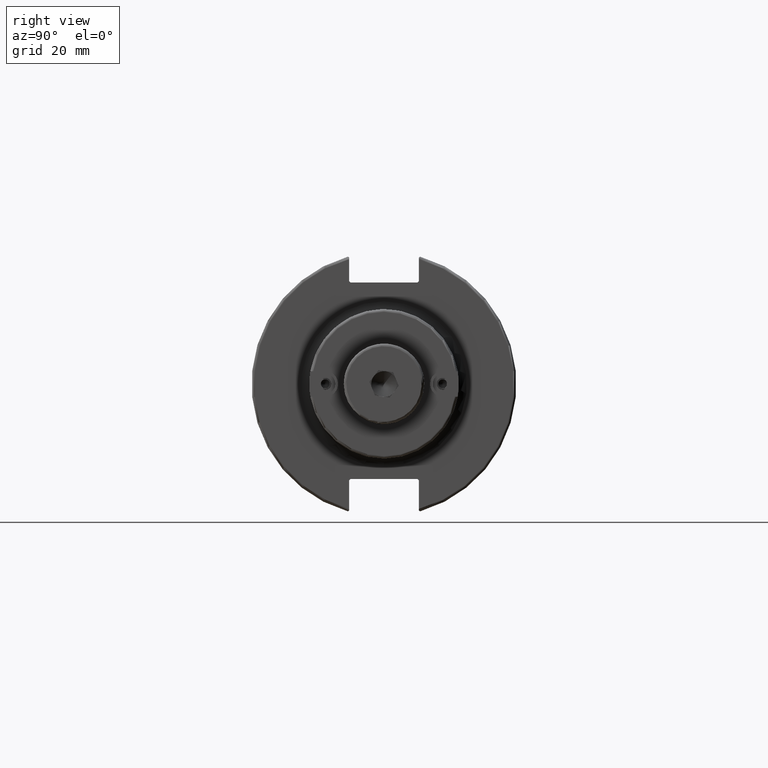
[diagram: clean part render]
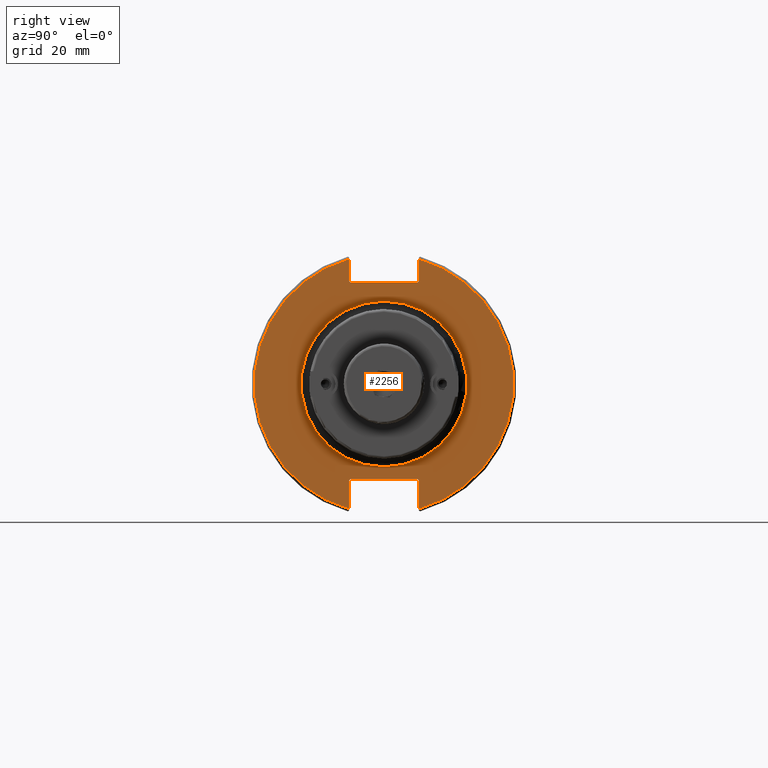
[diagram: same view with one face highlighted and labeled with its STEP entity id]
A machine part, right view. The second image highlights one B-rep face of the part: STEP entity #2256.
In plain terms, the highlighted planar face has unit normal (1, 0, 0).
Its self-contained STEP definition (entity closure, byte-faithful):
#73=FACE_BOUND('',#396,.T.);
#146=PLANE('',#2494);
#258=FACE_OUTER_BOUND('',#395,.T.);
#395=EDGE_LOOP('',(#1620,#1621,#1622,#1623,#1624,#1625,#1626,#1627,#1628,
#1629,#1630,#1631));
#396=EDGE_LOOP('',(#1632));
#560=LINE('',#3553,#716);
#561=LINE('',#3555,#717);
#562=LINE('',#3557,#718);
#563=LINE('',#3559,#719);
#564=LINE('',#3561,#720);
#565=LINE('',#3565,#721);
#566=LINE('',#3567,#722);
#567=LINE('',#3569,#723);
#568=LINE('',#3571,#724);
#569=LINE('',#3572,#725);
#716=VECTOR('',#2825,10.);
#717=VECTOR('',#2826,10.);
#718=VECTOR('',#2827,10.);
#719=VECTOR('',#2828,10.);
#720=VECTOR('',#2829,10.);
#721=VECTOR('',#2832,10.);
#722=VECTOR('',#2833,10.);
#723=VECTOR('',#2834,10.);
#724=VECTOR('',#2835,10.);
#725=VECTOR('',#2836,10.);
#869=CIRCLE('',#2493,30.79);
#870=CIRCLE('',#2495,48.2125);
#871=CIRCLE('',#2496,48.2125);
#1004=VERTEX_POINT('',#3545);
#1005=VERTEX_POINT('',#3549);
#1006=VERTEX_POINT('',#3550);
#1007=VERTEX_POINT('',#3552);
#1008=VERTEX_POINT('',#3554);
#1009=VERTEX_POINT('',#3556);
#1010=VERTEX_POINT('',#3558);
#1011=VERTEX_POINT('',#3560);
#1012=VERTEX_POINT('',#3562);
#1013=VERTEX_POINT('',#3564);
#1014=VERTEX_POINT('',#3566);
#1015=VERTEX_POINT('',#3568);
#1016=VERTEX_POINT('',#3570);
#1244=EDGE_CURVE('',#1004,#1004,#869,.T.);
#1245=EDGE_CURVE('',#1005,#1006,#870,.T.);
#1246=EDGE_CURVE('',#1005,#1007,#560,.T.);
#1247=EDGE_CURVE('',#1008,#1007,#561,.T.);
#1248=EDGE_CURVE('',#1008,#1009,#562,.T.);
#1249=EDGE_CURVE('',#1010,#1009,#563,.T.);
#1250=EDGE_CURVE('',#1010,#1011,#564,.T.);
#1251=EDGE_CURVE('',#1012,#1011,#871,.T.);
#1252=EDGE_CURVE('',#1012,#1013,#565,.T.);
#1253=EDGE_CURVE('',#1014,#1013,#566,.T.);
#1254=EDGE_CURVE('',#1014,#1015,#567,.T.);
#1255=EDGE_CURVE('',#1016,#1015,#568,.T.);
#1256=EDGE_CURVE('',#1016,#1006,#569,.T.);
#1620=ORIENTED_EDGE('',*,*,#1245,.F.);
#1621=ORIENTED_EDGE('',*,*,#1246,.T.);
#1622=ORIENTED_EDGE('',*,*,#1247,.F.);
#1623=ORIENTED_EDGE('',*,*,#1248,.T.);
#1624=ORIENTED_EDGE('',*,*,#1249,.F.);
#1625=ORIENTED_EDGE('',*,*,#1250,.T.);
#1626=ORIENTED_EDGE('',*,*,#1251,.F.);
#1627=ORIENTED_EDGE('',*,*,#1252,.T.);
#1628=ORIENTED_EDGE('',*,*,#1253,.F.);
#1629=ORIENTED_EDGE('',*,*,#1254,.T.);
#1630=ORIENTED_EDGE('',*,*,#1255,.F.);
#1631=ORIENTED_EDGE('',*,*,#1256,.T.);
#1632=ORIENTED_EDGE('',*,*,#1244,.F.);
#2256=ADVANCED_FACE('',(#258,#73),#146,.T.);
#2493=AXIS2_PLACEMENT_3D('',#3547,#2819,#2820);
#2494=AXIS2_PLACEMENT_3D('',#3548,#2821,#2822);
#2495=AXIS2_PLACEMENT_3D('',#3551,#2823,#2824);
#2496=AXIS2_PLACEMENT_3D('',#3563,#2830,#2831);
#2819=DIRECTION('center_axis',(1.,0.,0.));
#2820=DIRECTION('ref_axis',(0.,-1.,-1.22464679914735E-16));
#2821=DIRECTION('center_axis',(1.,0.,0.));
#2822=DIRECTION('ref_axis',(0.,0.,-1.));
#2823=DIRECTION('center_axis',(-1.,0.,0.));
#2824=DIRECTION('ref_axis',(0.,1.,-6.12323399573677E-17));
#2825=DIRECTION('',(0.,0.,-1.));
#2826=DIRECTION('',(0.,0.707106781186549,0.707106781186546));
#2827=DIRECTION('',(0.,-1.,0.));
#2828=DIRECTION('',(0.,0.707106781186549,-0.707106781186546));
#2829=DIRECTION('',(0.,0.,1.));
#2830=DIRECTION('center_axis',(-1.,0.,0.));
#2831=DIRECTION('ref_axis',(0.,-1.,1.60812264967664E-16));
#2832=DIRECTION('',(0.,0.,1.));
#2833=DIRECTION('',(0.,-0.707106781186549,-0.707106781186546));
#2834=DIRECTION('',(0.,1.,0.));
#2835=DIRECTION('',(0.,-0.707106781186549,0.707106781186546));
#2836=DIRECTION('',(0.,0.,-1.));
#3545=CARTESIAN_POINT('',(19.05,-3.7706874945747E-15,-30.79));
#3547=CARTESIAN_POINT('Origin',(19.05,0.,0.));
#3548=CARTESIAN_POINT('Origin',(19.05,0.,0.));
#3549=CARTESIAN_POINT('',(19.05,12.95,46.4407434937254));
#3550=CARTESIAN_POINT('',(19.05,12.95,-46.4407434937254));
#3551=CARTESIAN_POINT('Origin',(19.05,0.,0.));
#3552=CARTESIAN_POINT('',(19.05,12.95,38.219));
#3553=CARTESIAN_POINT('',(19.05,12.95,18.8595));
#3554=CARTESIAN_POINT('',(19.05,12.45,37.719));
#3555=CARTESIAN_POINT('',(19.05,0.0327499999999836,25.30175));
#3556=CARTESIAN_POINT('',(19.05,-12.45,37.719));
#3557=CARTESIAN_POINT('',(19.05,0.,37.719));
#3558=CARTESIAN_POINT('',(19.05,-12.95,38.219));
#3559=CARTESIAN_POINT('',(19.05,-0.0327499999999817,25.30175));
#3560=CARTESIAN_POINT('',(19.05,-12.95,46.4407434937254));
#3561=CARTESIAN_POINT('',(19.05,-12.95,18.8595));
#3562=CARTESIAN_POINT('',(19.05,-12.95,-46.4407434937254));
#3563=CARTESIAN_POINT('Origin',(19.05,0.,0.));
#3564=CARTESIAN_POINT('',(19.05,-12.95,-35.806));
#3565=CARTESIAN_POINT('',(19.05,-12.95,-17.653));
#3566=CARTESIAN_POINT('',(19.05,-12.45,-35.306));
#3567=CARTESIAN_POINT('',(19.05,-0.635999999999989,-23.492));
#3568=CARTESIAN_POINT('',(19.05,12.45,-35.306));
#3569=CARTESIAN_POINT('',(19.05,-3.33066907387547E-15,-35.306));
#3570=CARTESIAN_POINT('',(19.05,12.95,-35.806));
#3571=CARTESIAN_POINT('',(19.05,0.635999999999982,-23.492));
#3572=CARTESIAN_POINT('',(19.05,12.95,-17.653));